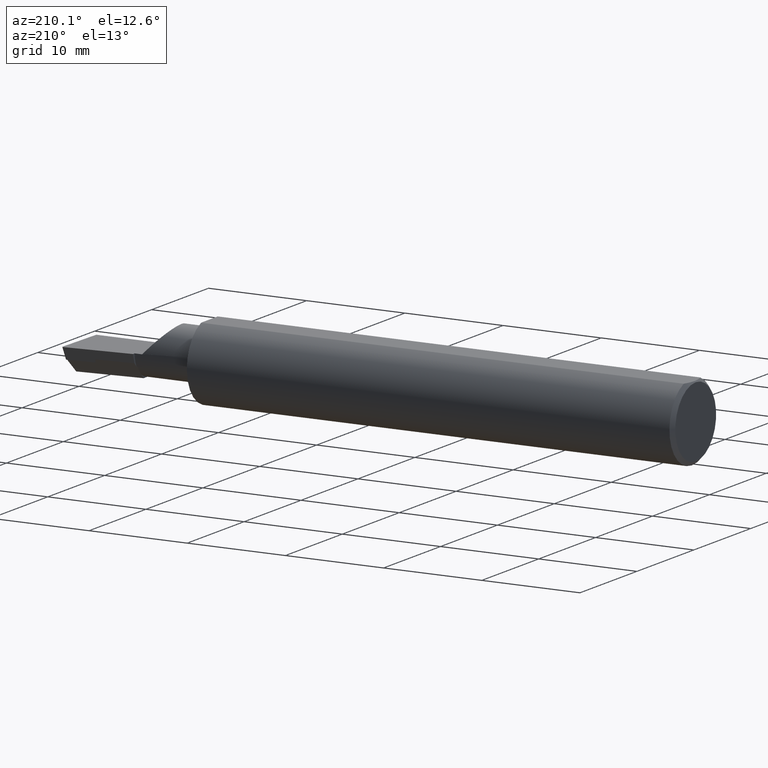
[diagram: clean part render]
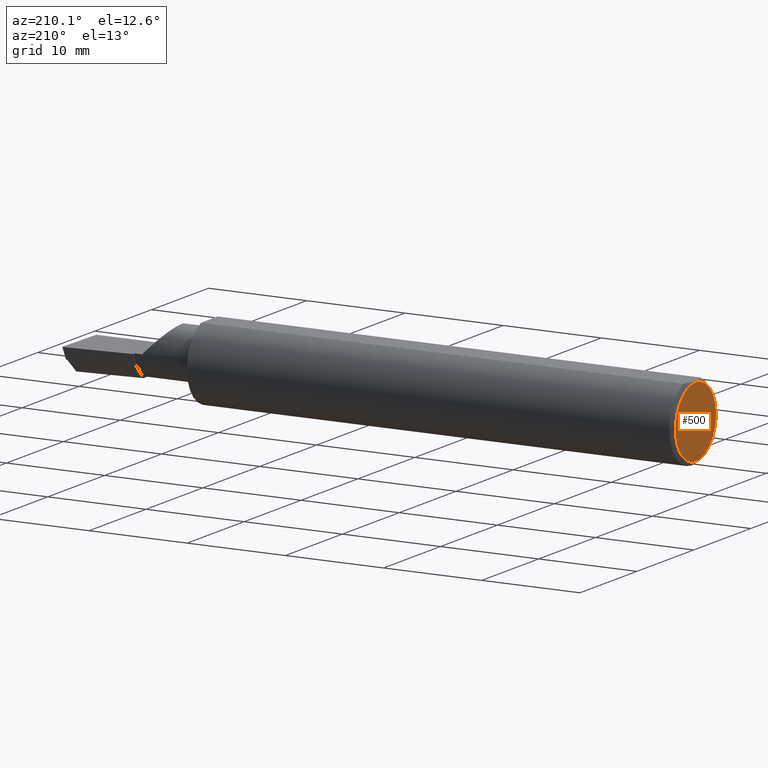
[diagram: same view with one face highlighted and labeled with its STEP entity id]
A machine part, auxiliary view. The second image highlights one B-rep face of the part: STEP entity #500.
In plain terms, the highlighted planar face has unit normal (1, 0, 0).
Its self-contained STEP definition (entity closure, byte-faithful):
#145 = FACE_OUTER_BOUND ( 'NONE', #204, .T. ) ;
#204 = EDGE_LOOP ( 'NONE', ( #1109, #405 ) ) ;
#227 = EDGE_CURVE ( 'NONE', #410, #787, #1181, .T. ) ;
#274 = AXIS2_PLACEMENT_3D ( 'NONE', #290, #467, #946 ) ;
#290 = CARTESIAN_POINT ( 'NONE',  ( 0.000000000000000000, 0.000000000000000000, 0.000000000000000000 ) ) ;
#350 = DIRECTION ( 'NONE',  ( 0.000000000000000000, 0.000000000000000000, -1.000000000000000000 ) ) ;
#357 = AXIS2_PLACEMENT_3D ( 'NONE', #1004, #435, #350 ) ;
#405 = ORIENTED_EDGE ( 'NONE', *, *, #227, .T. ) ;
#410 = VERTEX_POINT ( 'NONE', #1164 ) ;
#435 = DIRECTION ( 'NONE',  ( 1.000000000000000000, 0.000000000000000000, 0.000000000000000000 ) ) ;
#467 = DIRECTION ( 'NONE',  ( -1.000000000000000000, -0.000000000000000000, -0.000000000000000000 ) ) ;
#490 = CARTESIAN_POINT ( 'NONE',  ( 0.000000000000000000, 0.000000000000000000, -3.583940000000000570 ) ) ;
#500 = ADVANCED_FACE ( 'NONE', ( #145 ), #1212, .F. ) ;
#525 = DIRECTION ( 'NONE',  ( 0.000000000000000000, 0.000000000000000000, -1.000000000000000000 ) ) ;
#560 = CIRCLE ( 'NONE', #717, 3.583940000000000570 ) ;
#614 = CARTESIAN_POINT ( 'NONE',  ( 0.000000000000000000, 0.000000000000000000, 0.000000000000000000 ) ) ;
#717 = AXIS2_PLACEMENT_3D ( 'NONE', #614, #990, #525 ) ;
#787 = VERTEX_POINT ( 'NONE', #490 ) ;
#946 = DIRECTION ( 'NONE',  ( 0.000000000000000000, 0.000000000000000000, -1.000000000000000000 ) ) ;
#990 = DIRECTION ( 'NONE',  ( -1.000000000000000000, -0.000000000000000000, -0.000000000000000000 ) ) ;
#1004 = CARTESIAN_POINT ( 'NONE',  ( 0.000000000000000000, 0.000000000000000000, 0.000000000000000000 ) ) ;
#1107 = EDGE_CURVE ( 'NONE', #787, #410, #560, .T. ) ;
#1109 = ORIENTED_EDGE ( 'NONE', *, *, #1107, .T. ) ;
#1164 = CARTESIAN_POINT ( 'NONE',  ( 0.000000000000000000, 4.622355864573735845E-16, 3.583940000000000570 ) ) ;
#1181 = CIRCLE ( 'NONE', #274, 3.583940000000000570 ) ;
#1212 = PLANE ( 'NONE',  #357 ) ;